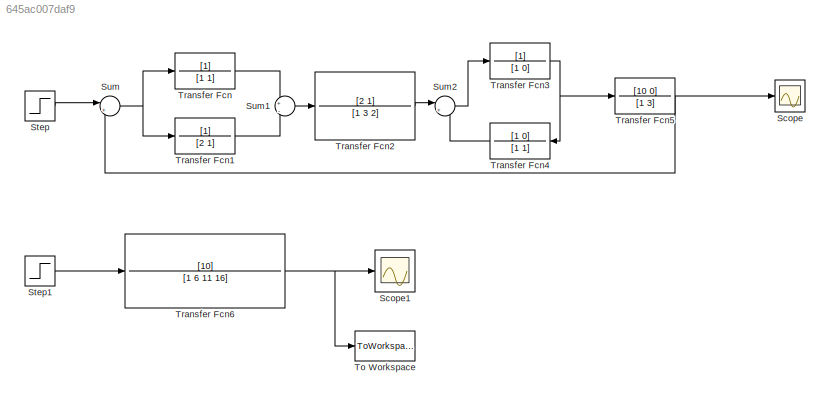
MODEL slx_645ac007daf9
KIND model
CONFIG AbsTol = auto
CONFIG EnableMultiTasking = off
CONFIG FixedStep = auto
CONFIG MaxStep = auto
CONFIG MinStep = auto
CONFIG RelTol = 1e-3
CONFIG SampleTimeConstraint = Unconstrained
CONFIG SolverName = VariableStepAuto
CONFIG StartTime = 0.0
CONFIG StopTime = 10.0
BLOCK [Scope] Scope
  Floating = off
  NumInputPorts = 1
  Ports = [1]
  ScopeSpecificationString = Simulink.scopes.TimeScopeBlockCfg('CurrentConfiguration', extmgr.ConfigurationSet(extmgr.Configuration('Core','General UI',true),extmgr.Configuration('Core','Source UI',true),extmgr.Configuration('Sources','WiredSimulink',true,'DataLoggingVariableName','ScopeData1'),extmgr.Configuration('Visuals','Time Domain',true,'SerializedDisplays',{struct('MinYLimReal','-0.09304','MaxYLimReal','0.83735','YLab...<+1402ch>
BLOCK [Scope] Scope1
  Floating = off
  NumInputPorts = 1
  Ports = [1]
  ScopeSpecificationString = Simulink.scopes.TimeScopeBlockCfg('CurrentConfiguration', extmgr.ConfigurationSet(extmgr.Configuration('Core','General UI',true),extmgr.Configuration('Core','Source UI',true),extmgr.Configuration('Sources','WiredSimulink',true),extmgr.Configuration('Visuals','Time Domain',true,'SerializedDisplays',{struct('MinYLimReal','-0.09304','MaxYLimReal','0.83735','YLabelReal','','MinYLimMag','0.00000','MaxY...<+1363ch>
BLOCK [Step] Step
  SampleTime = 0
  Time = 0
BLOCK [Step] Step1
  SampleTime = 0
  Time = 0
BLOCK [Sum] Sum
  Inputs = |+-
  Ports = [2, 1]
BLOCK [Sum] Sum1
  Inputs = +|-
  Ports = [2, 1]
BLOCK [Sum] Sum2
  Inputs = |++
  Ports = [2, 1]
BLOCK [ToWorkspace] To Workspace
  FixptAsFi = on
  MaxDataPoints = inf
  Ports = [1]
  SampleTime = -1
  SaveFormat = Timeseries
  VariableName = simout
BLOCK [TransferFcn] Transfer Fcn
  Denominator = [1 1]
BLOCK [TransferFcn] Transfer Fcn1
  Denominator = [2 1]
BLOCK [TransferFcn] Transfer Fcn2
  Denominator = [1 3 2]
  Numerator = [2 1]
BLOCK [TransferFcn] Transfer Fcn3
  Denominator = [1 0]
BLOCK [TransferFcn] Transfer Fcn4
  Denominator = [1 1]
  Numerator = [1 0]
BLOCK [TransferFcn] Transfer Fcn5
  Denominator = [1 3]
  Numerator = [10 0]
BLOCK [TransferFcn] Transfer Fcn6
  Denominator = [1 6 11 16]
  Numerator = [10]
LINE Step1:1 -> Transfer Fcn6:1
LINE Step:1 -> Sum:1
LINE Sum1:1 -> Transfer Fcn2:1
LINE Sum2:1 -> Transfer Fcn3:1
NET Sum:1 -> Transfer Fcn1:1, Transfer Fcn:1
LINE Transfer Fcn1:1 -> Sum1:2
LINE Transfer Fcn2:1 -> Sum2:1
NET Transfer Fcn3:1 -> Transfer Fcn4:1, Transfer Fcn5:1
LINE Transfer Fcn4:1 -> Sum2:2
NET Transfer Fcn5:1 -> Scope:1, Sum:2
NET Transfer Fcn6:1 -> Scope1:1, To Workspace:1
LINE Transfer Fcn:1 -> Sum1:1
note: NET lines group one-source signal fan-out (src -> all destinations, sorted); 1:1 wires keep LINE
